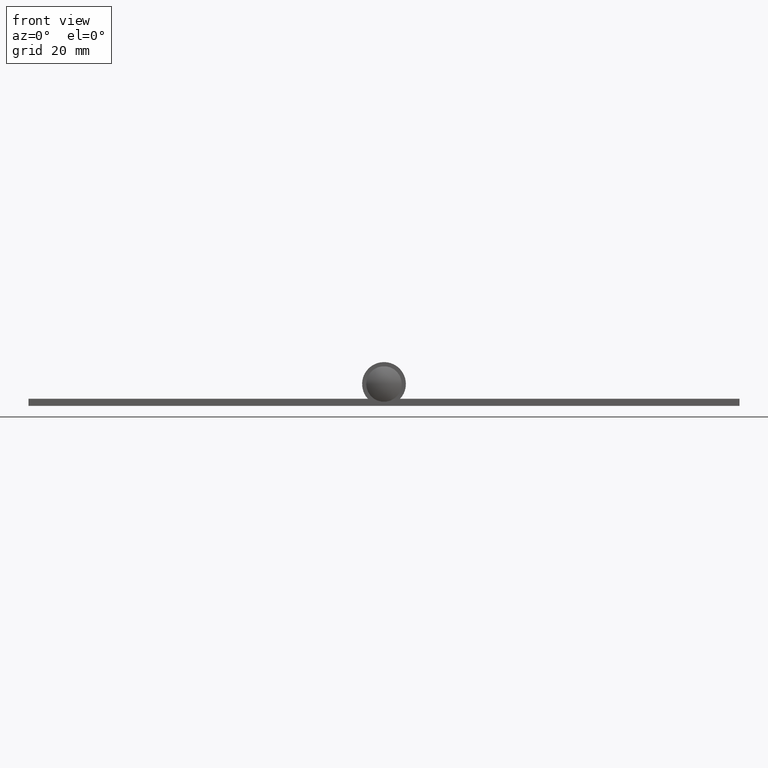
[diagram: clean part render]
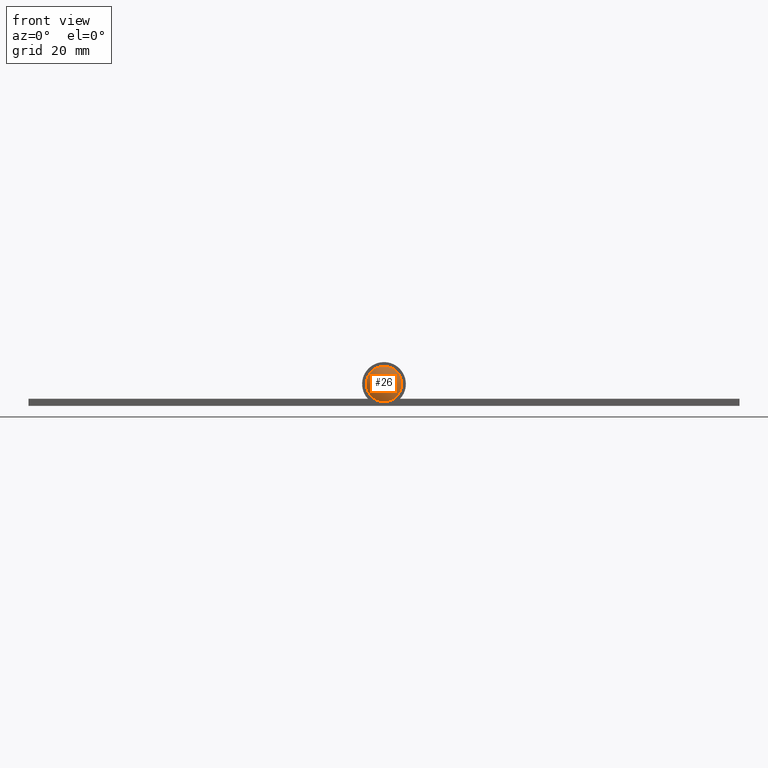
[diagram: same view with one face highlighted and labeled with its STEP entity id]
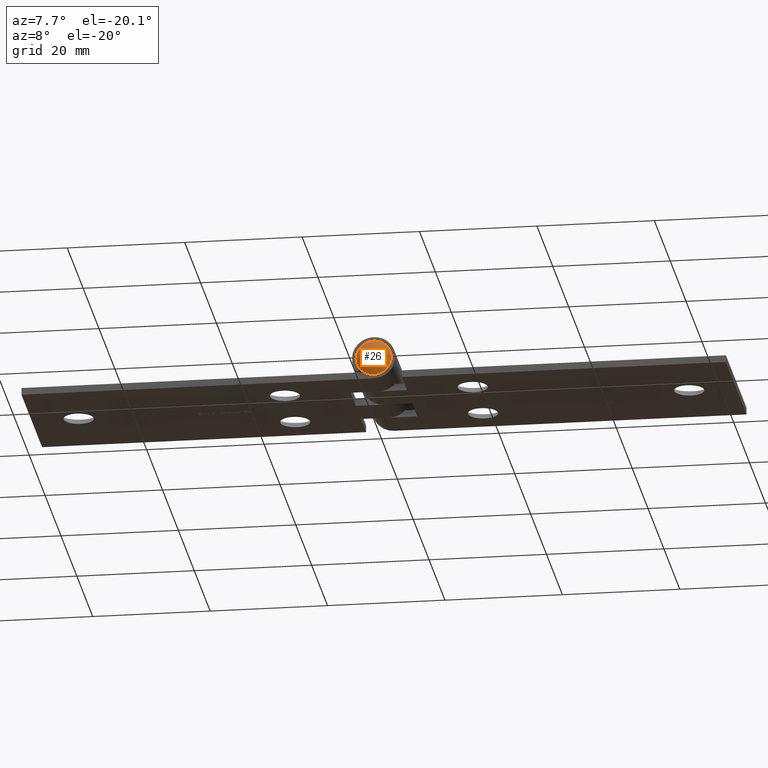
[diagram: same view with one face highlighted and labeled with its STEP entity id]
A machine part, front view. The second image highlights one B-rep face of the part: STEP entity #26.
A second angle (auxiliary view) of the same face is appended — the face is thin or edge-on in the first view.
In plain terms, the highlighted spherical surface has radius 5 mm.
Its self-contained STEP definition (entity closure, byte-faithful):
#26 = ADVANCED_FACE ( 'NONE', ( #9510 ), #90, .T. ) ;
#90 = SPHERICAL_SURFACE ( 'NONE', #6447, 4.999999999999985789 ) ;
#808 = EDGE_LOOP ( 'NONE', ( #6557 ) ) ;
#1819 = DIRECTION ( 'NONE',  ( 0.000000000000000000, 0.000000000000000000, -1.000000000000000000 ) ) ;
#3399 = AXIS2_PLACEMENT_3D ( 'NONE', #5835, #11183, #8513 ) ;
#4189 = CARTESIAN_POINT ( 'NONE',  ( 0.000000000000000000, -13.05000000000000071, -2.999999999999999556 ) ) ;
#4351 = DIRECTION ( 'NONE',  ( 1.000000000000000000, 0.000000000000000000, 0.000000000000000000 ) ) ;
#4674 = EDGE_CURVE ( 'NONE', #10377, #10377, #5463, .T. ) ;
#5035 = CARTESIAN_POINT ( 'NONE',  ( 0.000000000000000000, -9.050000000000018474, 0.000000000000000000 ) ) ;
#5463 = CIRCLE ( 'NONE', #3399, 2.999999999999999556 ) ;
#5835 = CARTESIAN_POINT ( 'NONE',  ( 0.000000000000000000, -13.05000000000000071, 0.000000000000000000 ) ) ;
#6447 = AXIS2_PLACEMENT_3D ( 'NONE', #5035, #1819, #4351 ) ;
#6557 = ORIENTED_EDGE ( 'NONE', *, *, #4674, .T. ) ;
#8513 = DIRECTION ( 'NONE',  ( 0.000000000000000000, 0.000000000000000000, -1.000000000000000000 ) ) ;
#9510 = FACE_OUTER_BOUND ( 'NONE', #808, .T. ) ;
#10377 = VERTEX_POINT ( 'NONE', #4189 ) ;
#11183 = DIRECTION ( 'NONE',  ( 0.000000000000000000, -1.000000000000000000, 0.000000000000000000 ) ) ;